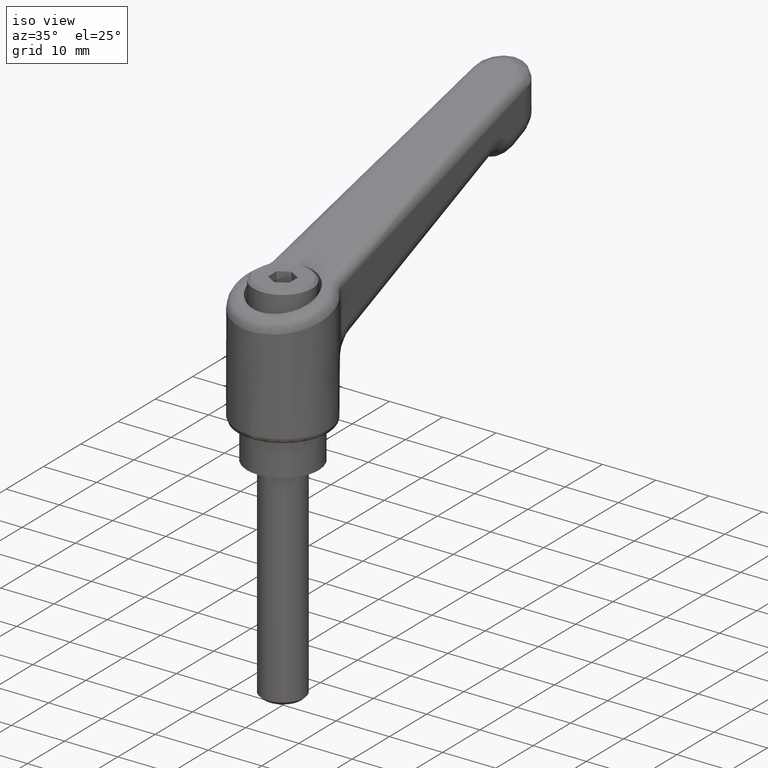
[diagram: clean part render]
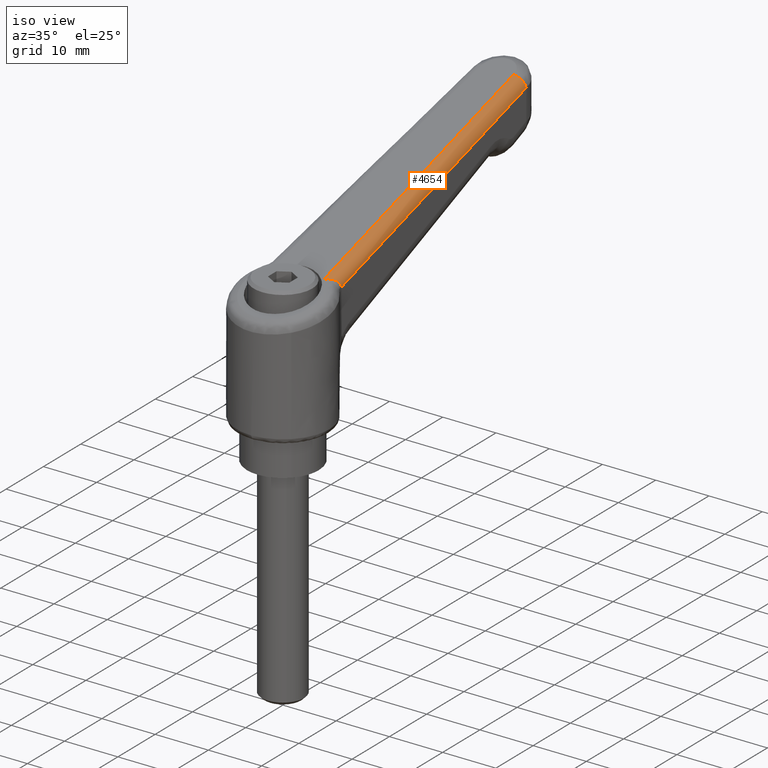
[diagram: same view with one face highlighted and labeled with its STEP entity id]
A machine part, iso view. The second image highlights one B-rep face of the part: STEP entity #4654.
In plain terms, the highlighted face is a freeform B-spline surface patch.
Its self-contained STEP definition (entity closure, byte-faithful):
#4419=CARTESIAN_POINT('',(6.473641861336390,-6.482310283934461,28.545761944539251));
#4420=VERTEX_POINT('',#4419);
#4511=CARTESIAN_POINT('',(4.498035217750171,-4.523532370376100,30.106748746074850));
#4512=VERTEX_POINT('',#4511);
#4513=CARTESIAN_POINT('',(4.498035217750171,-4.523532370376100,30.106748746074850));
#4514=CARTESIAN_POINT('',(4.521530737226824,-4.551055093359092,30.112970555919659));
#4515=CARTESIAN_POINT('',(4.545559772986082,-4.579156544781577,30.118706576997059));
#4516=CARTESIAN_POINT('',(4.593286840806678,-4.635060256906408,30.128809281383500));
#4517=CARTESIAN_POINT('',(4.617166862643507,-4.663042505200080,30.133226949248598));
#4518=CARTESIAN_POINT('',(4.688871669821537,-4.747068840692488,30.144557869744659));
#4519=CARTESIAN_POINT('',(4.784649775553830,-4.859316547581914,30.154546753870129));
#4520=CARTESIAN_POINT('',(4.880954172517021,-4.971859110935052,30.153926592986799));
#4521=CARTESIAN_POINT('',(4.977630351430150,-5.084477204269985,30.147703002248161));
#4522=CARTESIAN_POINT('',(5.026099949052264,-5.140758480592126,30.141769535955689));
#4523=CARTESIAN_POINT('',(5.170302454065685,-5.307340098412296,30.115437051763490));
#4524=CARTESIAN_POINT('',(5.265451263719941,-5.416124954692790,30.086558951413789));
#4525=CARTESIAN_POINT('',(5.407200527464202,-5.574976373655977,30.024534794989972));
#4526=CARTESIAN_POINT('',(5.454467617006594,-5.627397537506078,30.000617850179630));
#4527=CARTESIAN_POINT('',(5.547904623446285,-5.729618734974594,29.946462878272559));
#4528=CARTESIAN_POINT('',(5.593836704652301,-5.779163160940287,29.916390468658449));
#4529=CARTESIAN_POINT('',(5.729373357644339,-5.922813030588292,29.816944710364009));
#4530=CARTESIAN_POINT('',(5.816742887444385,-6.012007629509848,29.738466849451171));
#4531=CARTESIAN_POINT('',(5.985513219837730,-6.174390096002871,29.553467741994961));
#4532=CARTESIAN_POINT('',(6.063968007099758,-6.244710281576310,29.450123294386160));
#4533=CARTESIAN_POINT('',(6.172375601449239,-6.332033748429596,29.278596150230658));
#4534=CARTESIAN_POINT('',(6.206978291076652,-6.358119235474552,29.218619577811591));
#4535=CARTESIAN_POINT('',(6.272939574123053,-6.403672311553694,29.092610961745759));
#4536=CARTESIAN_POINT('',(6.303676784882838,-6.422697107985434,29.027731856309789));
#4537=CARTESIAN_POINT('',(6.388640446365967,-6.468168589100186,28.829032717296030));
#4538=CARTESIAN_POINT('',(6.436053584748850,-6.483390116421460,28.690594948947609));
#4539=CARTESIAN_POINT('',(6.473641861336390,-6.482310283934461,28.545761944539251));
#4540=B_SPLINE_CURVE_WITH_KNOTS('',3,(#4513,#4514,#4515,#4516,#4517,#4518,#4519,#4520,#4521,#4522,#4523,#4524,#4525,#4526,#4527,#4528,#4529,#4530,#4531,#4532,#4533,#4534,#4535,#4536,#4537,#4538,#4539),.UNSPECIFIED.,.F.,.U.,(4,2,2,1,2,2,2,2,2,2,2,2,2,4),(0.0,0.031250000000000,0.062500000000000,0.125000000000000,0.187500000000001,0.250000000000001,0.375000000000001,0.437500000000001,0.500000000000001,0.625000000000001,0.750000000000002,0.812500000000001,0.875000000000000,1.0),.UNSPECIFIED.);
#4541=EDGE_CURVE('',#4512,#4420,#4540,.T.);
#4610=CARTESIAN_POINT('',(3.759052792316054,-6.558977941750454,27.751878889027719));
#4611=CARTESIAN_POINT('',(59.522175215438402,-4.957020186948475,42.518419565375858));
#4612=CARTESIAN_POINT('',(3.188225801290650,-6.656748433436371,29.918108629724831));
#4613=CARTESIAN_POINT('',(58.951348224412982,-5.054790678634391,44.684649306072963));
#4614=CARTESIAN_POINT('',(3.168623212615539,-4.420867098112182,29.749573158460006));
#4615=CARTESIAN_POINT('',(58.931745635737883,-2.818909343310203,44.516113834808138));
#4623=(BOUNDED_SURFACE()B_SPLINE_SURFACE(1,2,((#4610,#4612,#4614),(#4611,#4613,#4615)),.UNSPECIFIED.,.F.,.F.,.U.)B_SPLINE_SURFACE_WITH_KNOTS((2,2),(3,3),(0.0,57.707389601077473),(0.0,3.584355081101085),.UNSPECIFIED.)GEOMETRIC_REPRESENTATION_ITEM()RATIONAL_B_SPLINE_SURFACE(((1.0,0.664432629144145,0.996394314401954),(1.0,0.664432629144145,0.996394314401954)))REPRESENTATION_ITEM('')SURFACE());
#4624=CARTESIAN_POINT('',(57.574177916736303,-2.998765917262975,44.161754743788748));
#4625=VERTEX_POINT('',#4624);
#4626=CARTESIAN_POINT('',(4.498035217750171,-4.523532370376100,30.106748746074850));
#4627=CARTESIAN_POINT('',(57.574177916736303,-2.998765917262975,44.161754743788748));
#4628=QUASI_UNIFORM_CURVE('',1,(#4626,#4627),.UNSPECIFIED.,.F.,.U.);
#4629=EDGE_CURVE('',#4512,#4625,#4628,.T.);
#4630=ORIENTED_EDGE('',*,*,#4629,.F.);
#4631=ORIENTED_EDGE('',*,*,#4541,.T.);
#4632=CARTESIAN_POINT('',(58.143580295737003,-4.997941135143631,42.228393305217850));
#4633=VERTEX_POINT('',#4632);
#4634=CARTESIAN_POINT('',(58.143580295737003,-4.997941135143631,42.228393305217850));
#4635=CARTESIAN_POINT('',(6.473641861336390,-6.482310283934461,28.545761944539251));
#4636=QUASI_UNIFORM_CURVE('',1,(#4634,#4635),.UNSPECIFIED.,.F.,.U.);
#4637=EDGE_CURVE('',#4633,#4420,#4636,.T.);
#4638=ORIENTED_EDGE('',*,*,#4637,.F.);
#4639=CARTESIAN_POINT('',(58.143580295737003,-4.997941135143631,42.228393305217850));
#4640=CARTESIAN_POINT('',(58.088918659017772,-4.999636102021700,42.434996792956163));
#4641=CARTESIAN_POINT('',(57.990464377186910,-4.941111060630960,42.800442136261502));
#4642=CARTESIAN_POINT('',(57.873579734495102,-4.738089705649167,43.219810568010942));
#4643=CARTESIAN_POINT('',(57.785691301016627,-4.503872101853365,43.526295808401763));
#4644=CARTESIAN_POINT('',(57.714262361631228,-4.241678566377499,43.767589812337789));
#4645=CARTESIAN_POINT('',(57.656063214098893,-3.935269500791519,43.954127192378380));
#4646=CARTESIAN_POINT('',(57.601232265835371,-3.524546801498243,44.116628655647780));
#4647=CARTESIAN_POINT('',(57.579883640367122,-3.212408318106767,44.163385263488038));
#4648=CARTESIAN_POINT('',(57.574177916736303,-2.998765917262975,44.161754743788748));
#4649=B_SPLINE_CURVE_WITH_KNOTS('',3,(#4639,#4640,#4641,#4642,#4643,#4644,#4645,#4646,#4647,#4648),.UNSPECIFIED.,.F.,.U.,(4,1,1,1,1,1,1,4),(0.000000055533905,0.641135597838991,1.134337408941054,1.430244245349461,1.824761440388062,2.219321493463839,2.515240285147729,3.156374501168976),.UNSPECIFIED.);
#4650=EDGE_CURVE('',#4633,#4625,#4649,.T.);
#4651=ORIENTED_EDGE('',*,*,#4650,.T.);
#4652=EDGE_LOOP('',(#4630,#4631,#4638,#4651));
#4653=FACE_OUTER_BOUND('',#4652,.T.);
#4654=ADVANCED_FACE('',(#4653),#4623,.T.);